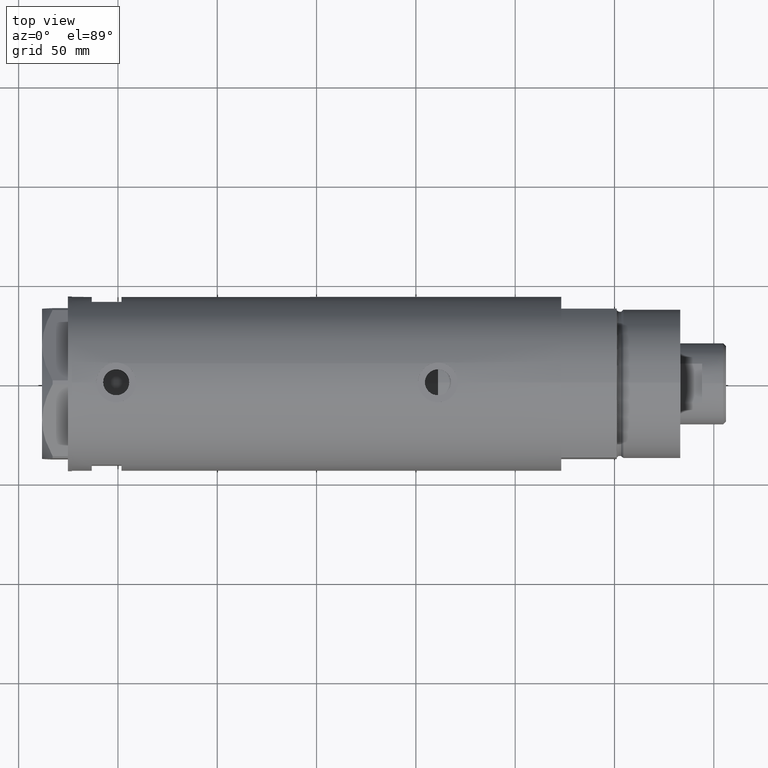
[diagram: clean part render]
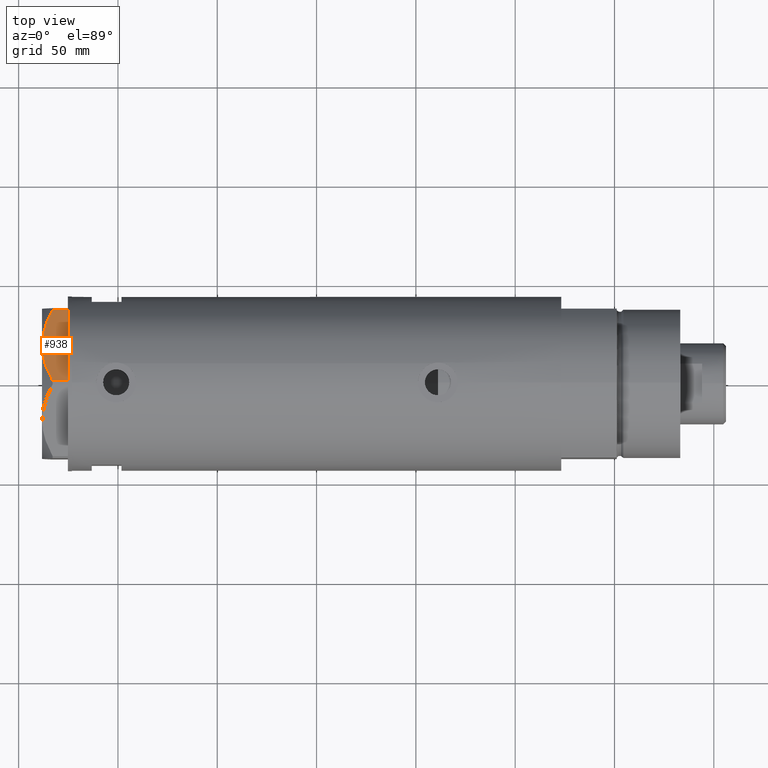
[diagram: same view with one face highlighted and labeled with its STEP entity id]
A machine part, top view. The second image highlights one B-rep face of the part: STEP entity #938.
In plain terms, the highlighted planar face has unit normal (-0, -0.5, -0.866).
Its self-contained STEP definition (entity closure, byte-faithful):
#162 = CARTESIAN_POINT ( 'NONE',  ( 20.42709085942840730, -31.79635891736482023, 12.99999999999999645 ) ) ;
#200 = VECTOR ( 'NONE', #776, 1000.000000000000000 ) ;
#205 = CARTESIAN_POINT ( 'NONE',  ( 36.78005154775924268, -22.35497266190964538, 7.709124142618180464 ) ) ;
#360 = CARTESIAN_POINT ( 'NONE',  ( 12.63736081963744873, -36.29376165275263588, 12.35956205105863326 ) ) ;
#632 = LINE ( 'NONE', #2786, #2051 ) ;
#676 = VERTEX_POINT ( 'NONE', #2327 ) ;
#712 = CARTESIAN_POINT ( 'NONE',  ( 6.659529780759589457, -39.74506401221886165, 10.58681170757598977 ) ) ;
#725 = CARTESIAN_POINT ( 'NONE',  ( 0.9699484522385760643, -43.02994532381674020, 0.000000000000000000 ) ) ;
#776 = DIRECTION ( 'NONE',  ( 0.000000000000000000, 0.000000000000000000, -1.000000000000000000 ) ) ;
#909 = CARTESIAN_POINT ( 'NONE',  ( 29.55075297405426227, -26.52881013949038547, 11.04644118613091841 ) ) ;
#930 = CARTESIAN_POINT ( 'NONE',  ( 26.54034249379520460, -28.26687144063922830, 12.01242981158384993 ) ) ;
#938 = ADVANCED_FACE ( 'NONE', ( #3506 ), #3424, .F. ) ;
#1112 = DIRECTION ( 'NONE',  ( 0.000000000000000000, 0.000000000000000000, 1.000000000000000000 ) ) ;
#1165 = VERTEX_POINT ( 'NONE', #4231 ) ;
#1232 = CARTESIAN_POINT ( 'NONE',  ( 21.96683860604023764, -30.90738514137435544, 12.87183830165162846 ) ) ;
#1234 = ORIENTED_EDGE ( 'NONE', *, *, #2049, .F. ) ;
#1279 = CARTESIAN_POINT ( 'NONE',  ( 28.80058011347544422, -26.96192264248431769, 11.30742055474504859 ) ) ;
#1309 = AXIS2_PLACEMENT_3D ( 'NONE', #3172, #3850, #3832 ) ;
#1334 = CARTESIAN_POINT ( 'NONE',  ( 36.78005154775924268, -22.35497266190964538, 7.709124142618180464 ) ) ;
#1423 = CARTESIAN_POINT ( 'NONE',  ( 17.30879953081281641, -33.59670525535269547, 12.96759879420491401 ) ) ;
#1439 = LINE ( 'NONE', #1467, #200 ) ;
#1454 = LINE ( 'NONE', #2874, #1688 ) ;
#1467 = CARTESIAN_POINT ( 'NONE',  ( 0.9699484522385762864, -43.02994532381674020, 13.00000000000000000 ) ) ;
#1688 = VECTOR ( 'NONE', #1112, 1000.000000000000000 ) ;
#1764 = CARTESIAN_POINT ( 'NONE',  ( 14.95332775978646822, -34.95663751642331363, 12.73960743196719747 ) ) ;
#1852 = EDGE_CURVE ( 'NONE', #3701, #3725, #1439, .T. ) ;
#1916 = CARTESIAN_POINT ( 'NONE',  ( 18.87499999999998579, -32.69245899286256218, 13.00000000000000000 ) ) ;
#1956 = CARTESIAN_POINT ( 'NONE',  ( 35.37320095427428157, -23.16721823076776232, 8.489459328479206590 ) ) ;
#2049 = EDGE_CURVE ( 'NONE', #676, #2780, #4075, .T. ) ;
#2051 = VECTOR ( 'NONE', #3054, 1000.000000000000114 ) ;
#2115 = EDGE_CURVE ( 'NONE', #3725, #1165, #632, .T. ) ;
#2237 = ORIENTED_EDGE ( 'NONE', *, *, #4524, .T. ) ;
#2315 = CARTESIAN_POINT ( 'NONE',  ( 31.03235934281740427, -25.67340430365192105, 10.48240969891324070 ) ) ;
#2327 = CARTESIAN_POINT ( 'NONE',  ( 18.87499999999998579, -32.69245899286256218, 13.00000000000000000 ) ) ;
#2339 = CARTESIAN_POINT ( 'NONE',  ( 31.76569840794746824, -25.25001079699180551, 10.17879673963500942 ) ) ;
#2468 = CARTESIAN_POINT ( 'NONE',  ( 0.9699484522384296259, -43.02994532381681836, 7.709124142616899711 ) ) ;
#2477 = CARTESIAN_POINT ( 'NONE',  ( 0.9699484522384296259, -43.02994532381681836, 7.709124142616899711 ) ) ;
#2780 = VERTEX_POINT ( 'NONE', #1334 ) ;
#2786 = CARTESIAN_POINT ( 'NONE',  ( -4.107234936485837051E-15, -43.58994532381674247, 0.000000000000000000 ) ) ;
#2841 = CARTESIAN_POINT ( 'NONE',  ( 18.09346002772999995, -33.14368130623511632, 12.99999999999999822 ) ) ;
#2874 = CARTESIAN_POINT ( 'NONE',  ( 36.78005154776145247, -22.35497266190836640, 13.00000000000000000 ) ) ;
#2928 = EDGE_CURVE ( 'NONE', #3701, #676, #3113, .T. ) ;
#3054 = DIRECTION ( 'NONE',  ( 0.8660254037844388186, 0.4999999999999997224, 0.000000000000000000 ) ) ;
#3113 = B_SPLINE_CURVE_WITH_KNOTS ( 'NONE', 3,
 ( #2477, #3860, #712, #3513, #360, #1764, #3186, #1423, #2841, #4219 ),
 .UNSPECIFIED., .F., .F.,
 ( 4, 2, 2, 2, 4 ),
 ( 0.001231023567492486306, 0.01191187151549576335, 0.01725229548949740177, 0.01992250747649822532, 0.02259271946349904886 ),
 .UNSPECIFIED. ) ;
#3172 = CARTESIAN_POINT ( 'NONE',  ( -4.107234936485837051E-15, -43.58994532381674247, 13.00000000000000000 ) ) ;
#3186 = CARTESIAN_POINT ( 'NONE',  ( 15.73313492417777937, -34.50641564014599538, 12.83692902789789514 ) ) ;
#3385 = EDGE_LOOP ( 'NONE', ( #3530, #4008, #3650, #2237, #1234 ) ) ;
#3424 = PLANE ( 'NONE',  #1309 ) ;
#3506 = FACE_OUTER_BOUND ( 'NONE', #3385, .T. ) ;
#3513 = CARTESIAN_POINT ( 'NONE',  ( 11.12401302890051191, -37.16749340711212568, 11.98878493998158312 ) ) ;
#3530 = ORIENTED_EDGE ( 'NONE', *, *, #2928, .F. ) ;
#3650 = ORIENTED_EDGE ( 'NONE', *, *, #2115, .T. ) ;
#3701 = VERTEX_POINT ( 'NONE', #2468 ) ;
#3717 = CARTESIAN_POINT ( 'NONE',  ( 33.94595399727396057, -23.99123964559198541, 9.210778219601310823 ) ) ;
#3725 = VERTEX_POINT ( 'NONE', #725 ) ;
#3832 = DIRECTION ( 'NONE',  ( -0.8660254037844388186, -0.4999999999999997224, 0.000000000000000000 ) ) ;
#3850 = DIRECTION ( 'NONE',  ( -0.4999999999999997224, 0.8660254037844388186, 0.000000000000000000 ) ) ;
#3860 = CARTESIAN_POINT ( 'NONE',  ( 3.783045159267917956, -41.40580318275688398, 9.269459228581803600 ) ) ;
#4008 = ORIENTED_EDGE ( 'NONE', *, *, #1852, .T. ) ;
#4075 = B_SPLINE_CURVE_WITH_KNOTS ( 'NONE', 3,
 ( #1916, #162, #1232, #4420, #930, #1279, #909, #2315, #2339, #3717, #1956, #205 ),
 .UNSPECIFIED., .F., .F.,
 ( 4, 2, 2, 2, 2, 4 ),
 ( 0.02259271946349904886, 0.02789559809390703207, 0.03319847672431501528, 0.03584991603951900863, 0.03850135535472300197, 0.04380423398513099559 ),
 .UNSPECIFIED. ) ;
#4219 = CARTESIAN_POINT ( 'NONE',  ( 18.87499999999998579, -32.69245899286256218, 13.00000000000000000 ) ) ;
#4231 = CARTESIAN_POINT ( 'NONE',  ( 36.78005154776143115, -22.35497266190837706, 0.000000000000000000 ) ) ;
#4420 = CARTESIAN_POINT ( 'NONE',  ( 25.02345495740816972, -29.14264686810265914, 12.37795492145971821 ) ) ;
#4524 = EDGE_CURVE ( 'NONE', #1165, #2780, #1454, .T. ) ;